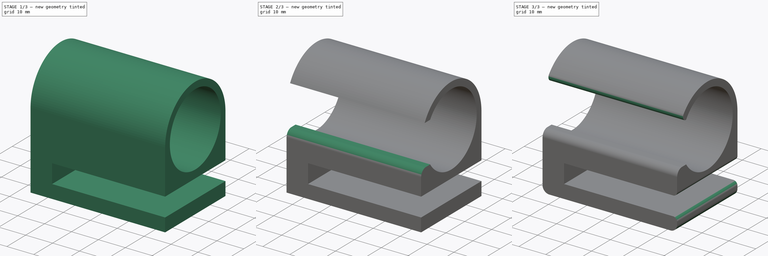
[diagram: build sequence overview — one tinted view per stage of 3, left to right]
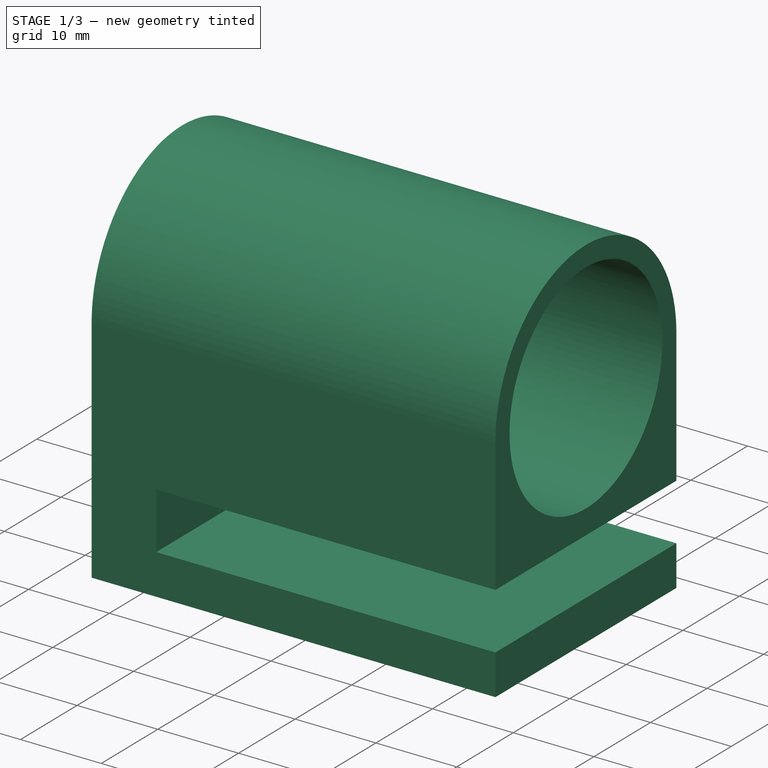
[diagram: stage 1 of 3 — iso view after this stage's code; geometry added in this stage tinted green]
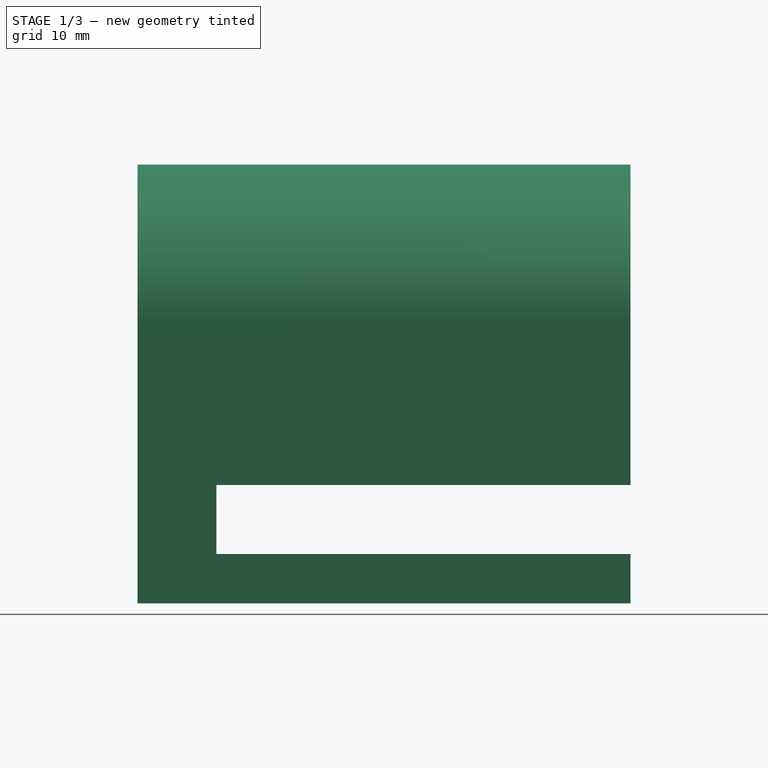
[diagram: stage 1 of 3 — front view after this stage's code; geometry added in this stage tinted green]
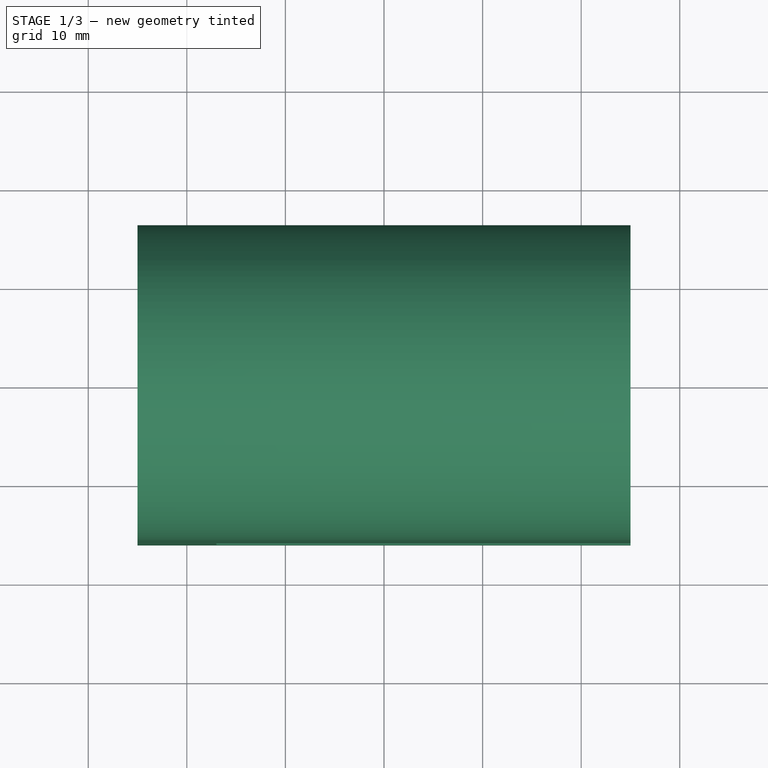
[diagram: stage 1 of 3 — top view after this stage's code; geometry added in this stage tinted green]
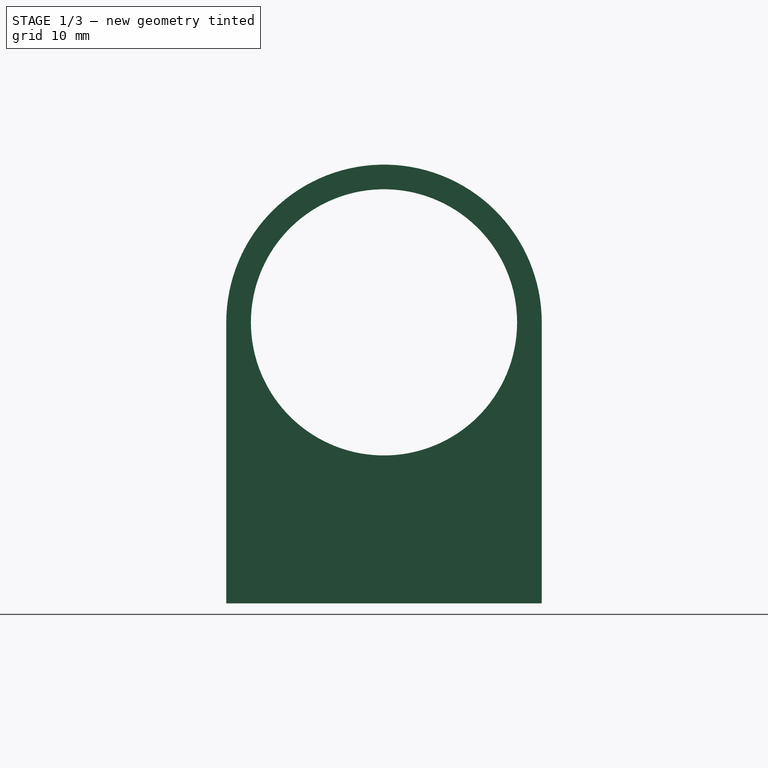
[diagram: stage 1 of 3 — right view after this stage's code; geometry added in this stage tinted green]
FCSTD DOCUMENT  (FreeCAD 0.18R4 (GitTag))
Label: PVC_pipe_webcam_adapter
License: All rights reserved
LicenseURL: http://en.wikipedia.org/wiki/All_rights_reserved
objects: Sketcher::SketchObject×4, PartDesign::Fillet×4, PartDesign::Pad×2, PartDesign::Body×2, PartDesign::Pocket×2, PartDesign::ShapeBinder×1
note: 19 computed .brp shape members not serialized (recipe doc carries the construction recipe); baked Part::Feature solids carry a one-line shape summary decoded from their .brp

FEATURE [Sketcher::SketchObject] Sketch  label="pipeSketch"
  MapMode = 5
  Placement = pos=(0,0,0) rot=(0.57735,0.57735,0.57735;2.0944rad)
  Support = -> [YZ_Plane]
  sketch-geometry (1):
    g0: Circle CenterX=0 CenterY=0 CenterZ=0 NormalX=0 NormalY=0 NormalZ=1 AngleXU=0 Radius=13.5
  constraints (2):
    c: Radius(g0) = 13.5
    c: Coincident(g0,g-1)
FEATURE [PartDesign::Pad] Pad  label="pipePad"
  Length = 80
  Length2 = 100
  Midplane = true
  Placement = pos=(0,0,0) rot=(0.57735,0.57735,0.57735;2.0944rad)
  Profile = -> Sketch
  Type = 0
FEATURE [PartDesign::Body] Body  label="pipe"
  Group = -> [Sketch,Pad]
  Origin = -> Origin
  Tip = -> Pad
FEATURE [PartDesign::ShapeBinder] ShapeBinder
  Placement = pos=(0,0,0) rot=(0.57735,0.57735,0.57735;2.0944rad)
  Support = -> [Pad]
  TraceSupport = false
FEATURE [Sketcher::SketchObject] Sketch001  label="mainBody_sketch"
  ExternalGeometry = -> [ShapeBinder]
  MapMode = 5
  Placement = pos=(0,0,0) rot=(0.57735,0.57735,0.57735;2.0944rad)
  Support = -> [YZ_Plane001]
  sketch-geometry (9):
    g0: LineSegment [constr] StartX=-13.5 StartY=0 StartZ=0 EndX=13.5 EndY=0 EndZ=0
    g1: LineSegment [constr] StartX=13.5 StartY=0 StartZ=0 EndX=13.5 EndY=13.5 EndZ=0
    g2: LineSegment [constr] StartX=13.5 StartY=13.5 StartZ=0 EndX=-13.5 EndY=13.5 EndZ=0
    g3: LineSegment [constr] StartX=-13.5 StartY=13.5 StartZ=0 EndX=-13.5 EndY=0 EndZ=0
    g4: ArcOfCircle CenterX=0 CenterY=0 CenterZ=0 NormalX=0 NormalY=0 NormalZ=1 AngleXU=0 Radius=16 StartAngle=0 EndAngle=3.14159
    g5: LineSegment StartX=-16 StartY=0 StartZ=0 EndX=-16 EndY=-28.5 EndZ=0
    g6: LineSegment StartX=-16 StartY=-28.5 StartZ=0 EndX=16 EndY=-28.5 EndZ=0
    g7: LineSegment StartX=16 StartY=-28.5 StartZ=0 EndX=16 EndY=0 EndZ=0
    g8: Circle CenterX=0 CenterY=0 CenterZ=0 NormalX=0 NormalY=0 NormalZ=1 AngleXU=0 Radius=13.5
  constraints (26):
    c: Coincident(g0,g1)
    c: Coincident(g1,g2)
    c: Coincident(g2,g3)
    c: Coincident(g3,g0)
    c: Horizontal(g0)
    c: Horizontal(g2)
    c: Vertical(g1)
    c: Vertical(g3)
    c: Tangent(g-3,g2)
    c: PointOnObject(g0,g-1)
    c: PointOnObject(g0,g-3)
    c: PointOnObject(g0,g-3)
    c: PointOnObject(g4,g-1)
    c: PointOnObject(g4,g-1)
    c: Coincident(g4,g-1)
    c: DistanceX(g4,g4) = 32
    c: Coincident(g5,g6)
    c: Coincident(g6,g7)
    c: Coincident(g4,g7)
    c: Coincident(g5,g4)
    c: Vertical(g7)
    c: Vertical(g5)
    c: Horizontal(g6)
    c: DistanceY(g7,g7) = 28.5
    c: Coincident(g8,g4)
    c: PointOnObject(g0,g8)
FEATURE [PartDesign::Pad] Pad001  label="mainBody_pad"
  Length = 50
  Length2 = 100
  Midplane = true
  Placement = pos=(0,0,0) rot=(0.57735,0.57735,0.57735;2.0944rad)
  Profile = -> Sketch001
  Type = 0
FEATURE [Sketcher::SketchObject] Sketch002  label="webcamGap_sketch"
  ExternalGeometry = -> [Pad001,ShapeBinder]
  MapMode = 5
  Placement = pos=(-7.1e-15,-16,5.3e-15) rot=(-0.57735,-0.57735,0.57735;4.18879rad)
  Support = -> [Pad001]
  sketch-geometry (4):
    g0: LineSegment StartX=16.5 StartY=-17 StartZ=0 EndX=23.5 EndY=-17 EndZ=0
    g1: LineSegment StartX=23.5 StartY=-17 StartZ=0 EndX=23.5 EndY=25 EndZ=0
    g2: LineSegment StartX=23.5 StartY=25 StartZ=0 EndX=16.5 EndY=25 EndZ=0
    g3: LineSegment StartX=16.5 StartY=25 StartZ=0 EndX=16.5 EndY=-17 EndZ=0
  constraints (12):
    c: Coincident(g0,g1)
    c: Coincident(g1,g2)
    c: Coincident(g2,g3)
    c: Coincident(g3,g0)
    c: Horizontal(g0)
    c: Horizontal(g2)
    c: Vertical(g1)
    c: Vertical(g3)
    c: DistanceX(g1,g-4) = 5
    c: DistanceX(g2,g2) = 7
    c: DistanceY(g3,g3) = 42
    c: PointOnObject(g2,g-9)
FEATURE [PartDesign::Pocket] Pocket  label="webcamGap_pocket"
  BaseFeature = -> Pad001
  Length = 0
  Length2 = 100
  Placement = pos=(0,0,0) rot=(0.57735,0.57735,0.57735;2.0944rad)
  Profile = -> Sketch002
  Type = 3
  UpToFace = -> Pad001 [Face4]
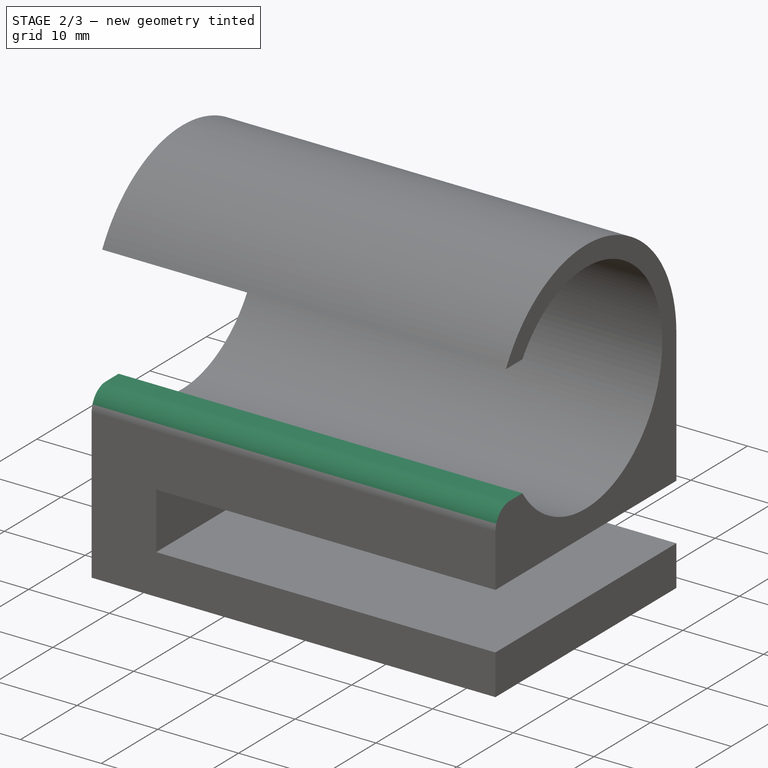
[diagram: stage 2 of 3 — iso view after this stage's code; geometry added in this stage tinted green]
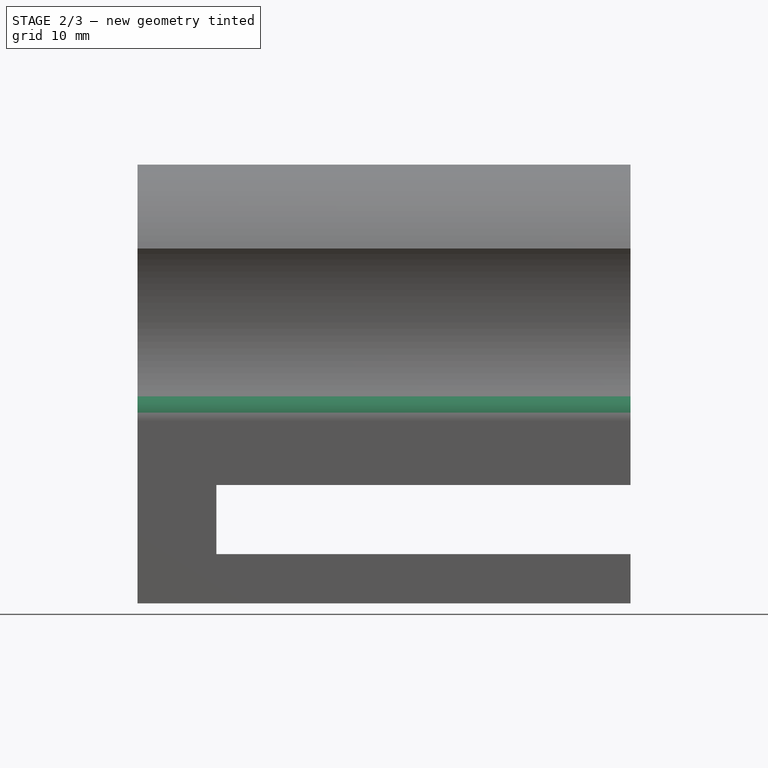
[diagram: stage 2 of 3 — front view after this stage's code; geometry added in this stage tinted green]
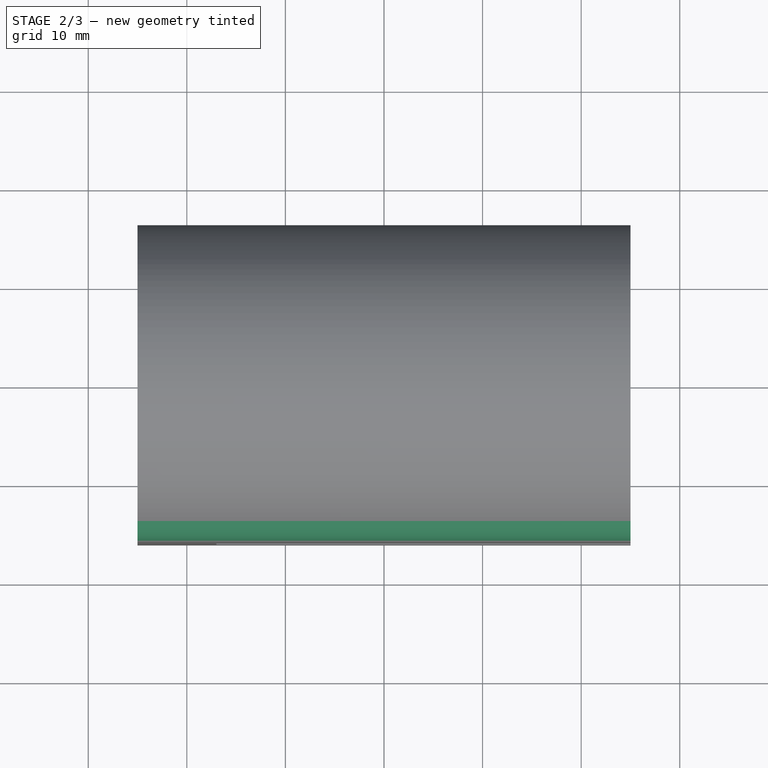
[diagram: stage 2 of 3 — top view after this stage's code; geometry added in this stage tinted green]
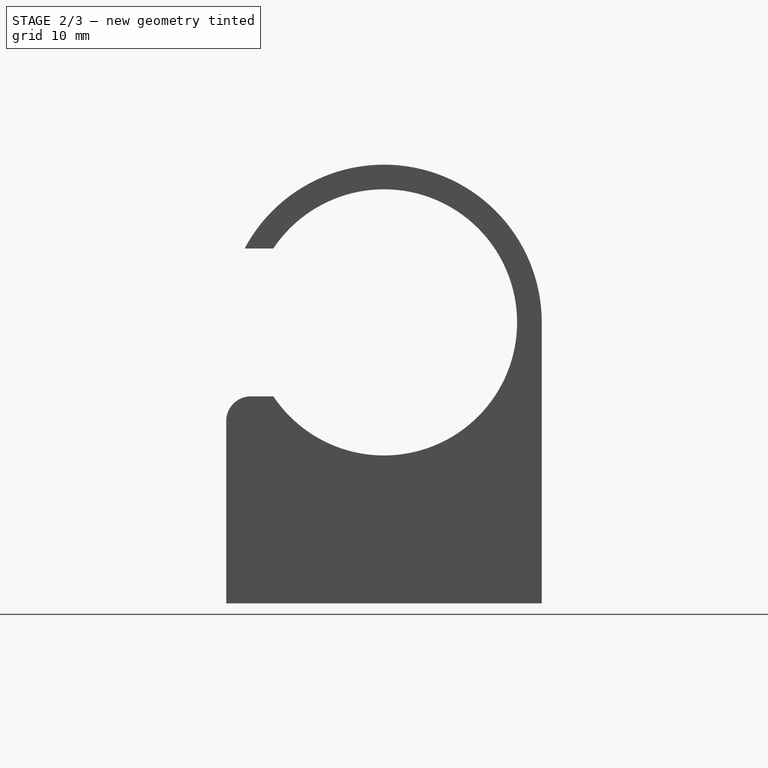
[diagram: stage 2 of 3 — right view after this stage's code; geometry added in this stage tinted green]
FEATURE [Sketcher::SketchObject] Sketch003  label="pipeComp_sketch"
  ExternalGeometry = -> [Pocket]
  MapMode = 5
  Placement = pos=(-7.1e-15,-16,1.07e-14) rot=(0.57735,0.57735,-0.57735;2.0944rad)
  Support = -> [Pocket]
  sketch-geometry (4):
    g0: LineSegment StartX=7.5 StartY=-25 StartZ=0 EndX=-7.5 EndY=-25 EndZ=0
    g1: LineSegment StartX=-7.5 StartY=-25 StartZ=0 EndX=-7.5 EndY=25 EndZ=0
    g2: LineSegment StartX=-7.5 StartY=25 StartZ=0 EndX=7.5 EndY=25 EndZ=0
    g3: LineSegment StartX=7.5 StartY=25 StartZ=0 EndX=7.5 EndY=-25 EndZ=0
  constraints (12):
    c: Coincident(g0,g1)
    c: Coincident(g1,g2)
    c: Coincident(g2,g3)
    c: Coincident(g3,g0)
    c: Horizontal(g0)
    c: Horizontal(g2)
    c: Vertical(g1)
    c: Vertical(g3)
    c: PointOnObject(g1,g-5)
    c: PointOnObject(g0,g-6)
    c: DistanceX(g0,g0) = 15
    c: DistanceX(g0,g-4) = 7.5
FEATURE [PartDesign::Pocket] Pocket001  label="pipeComp_pocket"
  BaseFeature = -> Pocket
  Length = 5
  Length2 = 100
  Placement = pos=(0,0,0) rot=(0.57735,0.57735,0.57735;2.0944rad)
  Profile = -> Sketch003
  Type = 0
FEATURE [PartDesign::Fillet] Fillet
  Base = -> Pocket001 [Edge31]
  BaseFeature = -> Pocket001
  Placement = pos=(0,0,0) rot=(0.57735,0.57735,0.57735;2.0944rad)
  Radius = 2.5
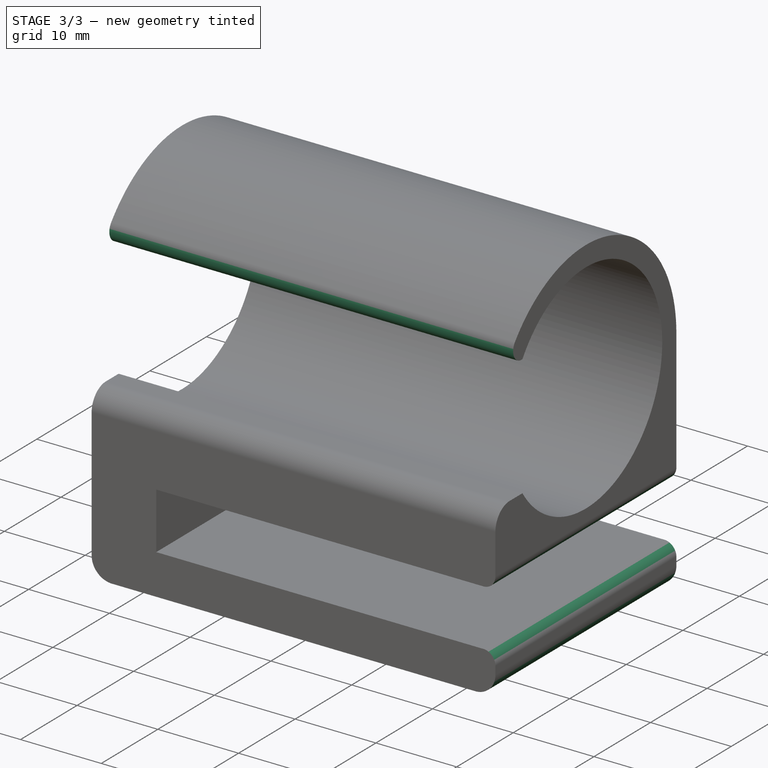
[diagram: stage 3 of 3 — iso view after this stage's code; geometry added in this stage tinted green]
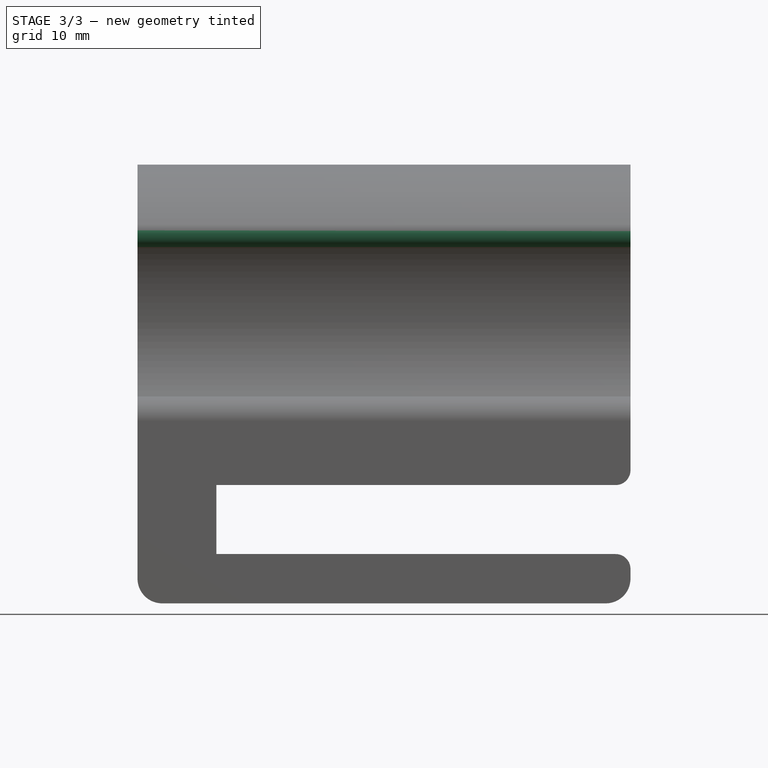
[diagram: stage 3 of 3 — front view after this stage's code; geometry added in this stage tinted green]
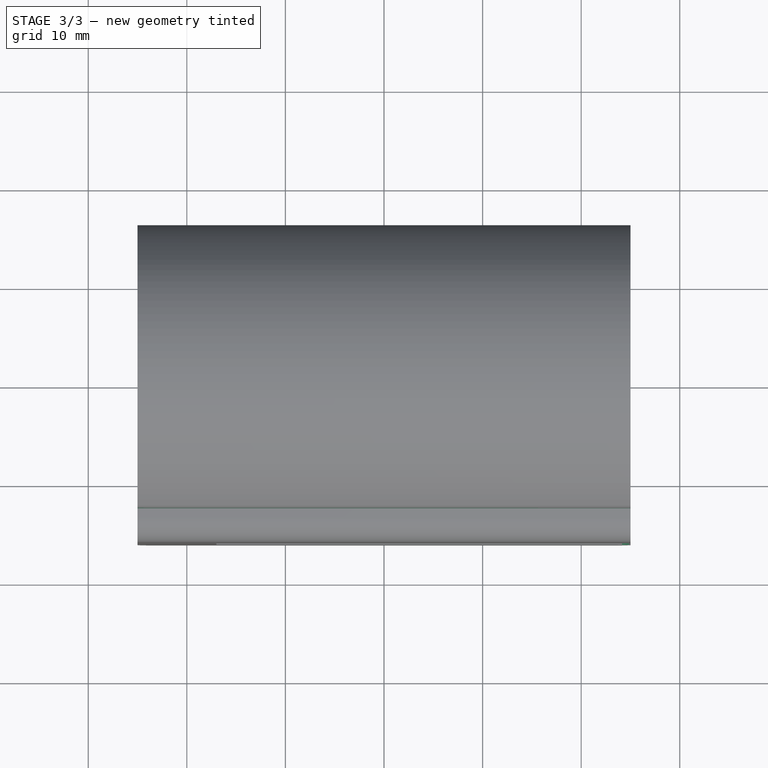
[diagram: stage 3 of 3 — top view after this stage's code; geometry added in this stage tinted green]
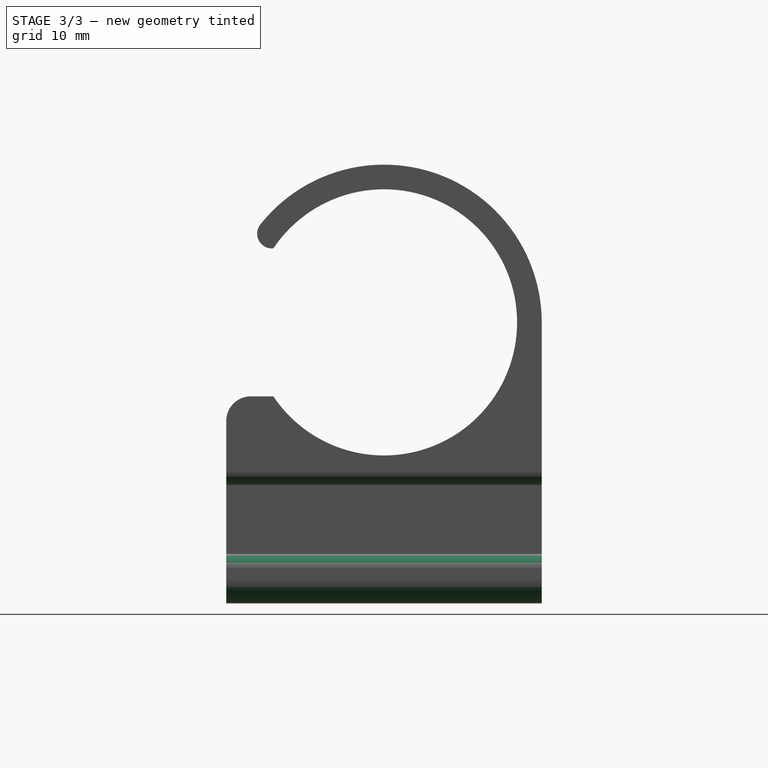
[diagram: stage 3 of 3 — right view after this stage's code; geometry added in this stage tinted green]
FEATURE [PartDesign::Fillet] Fillet001
  Base = -> Fillet [Edge31]
  BaseFeature = -> Fillet
  Placement = pos=(0,0,0) rot=(0.57735,0.57735,0.57735;2.0944rad)
  Radius = 1.5
FEATURE [PartDesign::Fillet] Fillet002
  Base = -> Fillet001 [Edge39,Edge42]
  BaseFeature = -> Fillet001
  Placement = pos=(0,0,0) rot=(0.57735,0.57735,0.57735;2.0944rad)
  Radius = 1.5
FEATURE [PartDesign::Fillet] Fillet003
  Base = -> Fillet002 [Edge37,Edge28]
  BaseFeature = -> Fillet002
  Placement = pos=(0,0,0) rot=(0.57735,0.57735,0.57735;2.0944rad)
  Radius = 2.5
FEATURE [PartDesign::Body] Body001  label="webcamHolder"
  Group = -> [ShapeBinder,Sketch001,Pad001,Sketch002,Pocket,Sketch003,Pocket001,Fillet,Fillet001,Fillet002,Fillet003]
  Origin = -> Origin001
  Tip = -> Fillet003
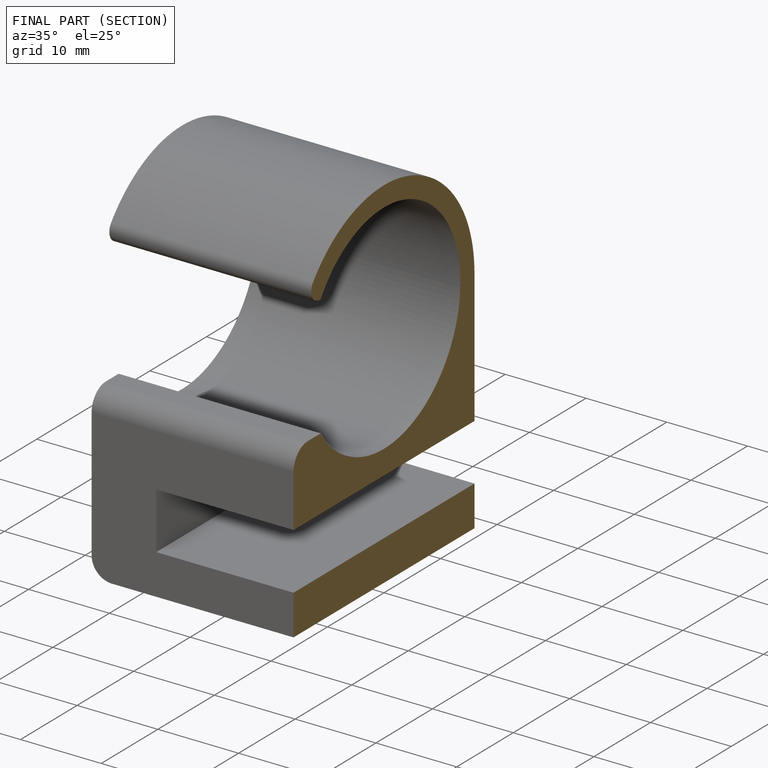
[diagram: finished part — half-section view (interior)]
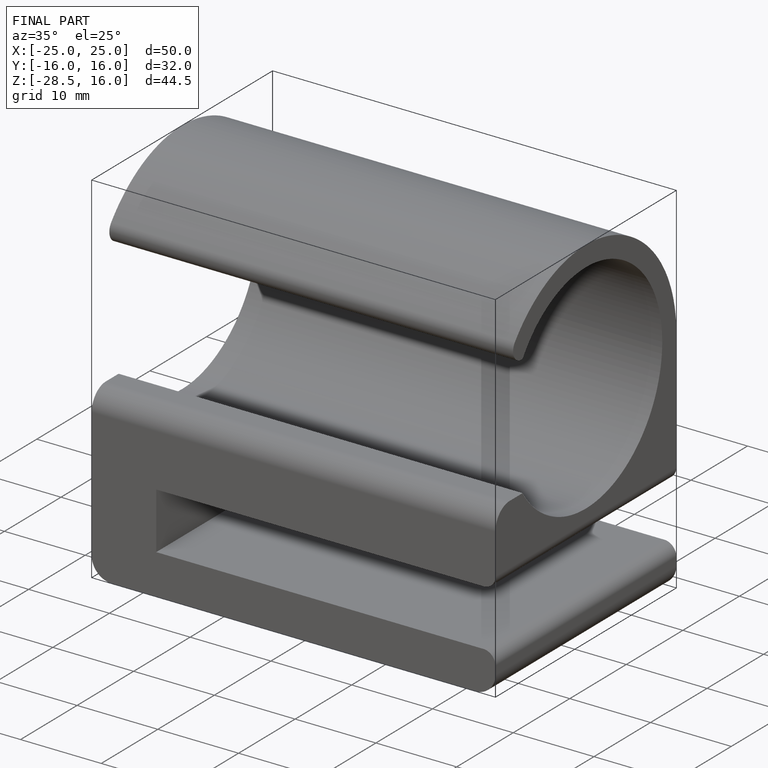
[diagram: finished part — iso view with bounding-box wireframe]
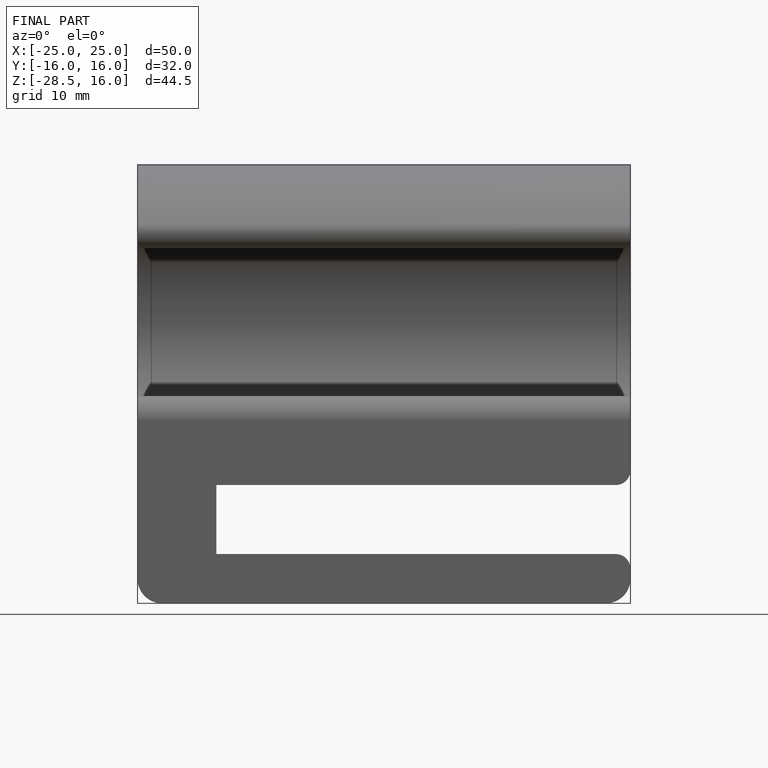
[diagram: finished part — front view with bounding-box wireframe]
